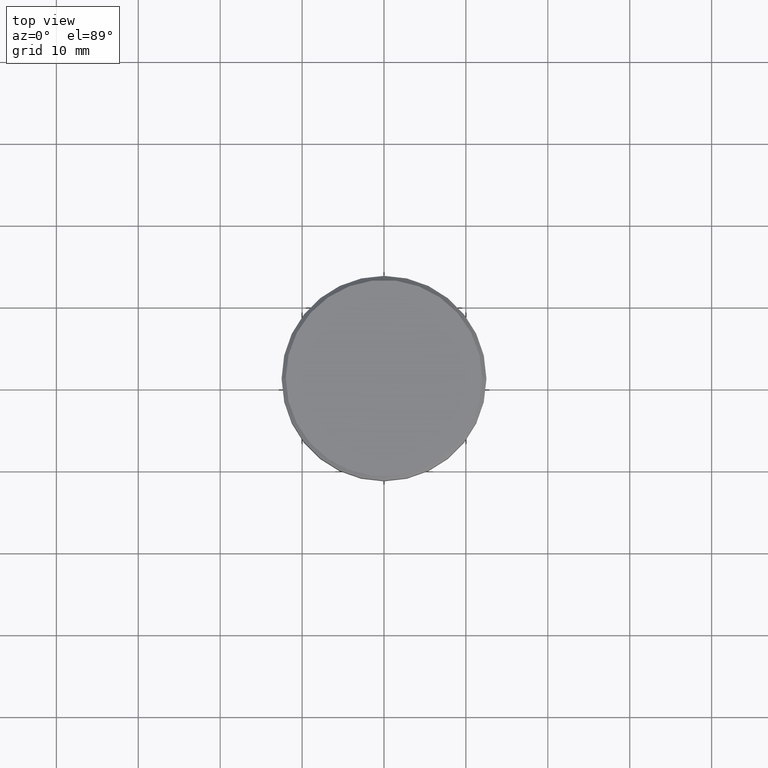
[diagram: clean part render]
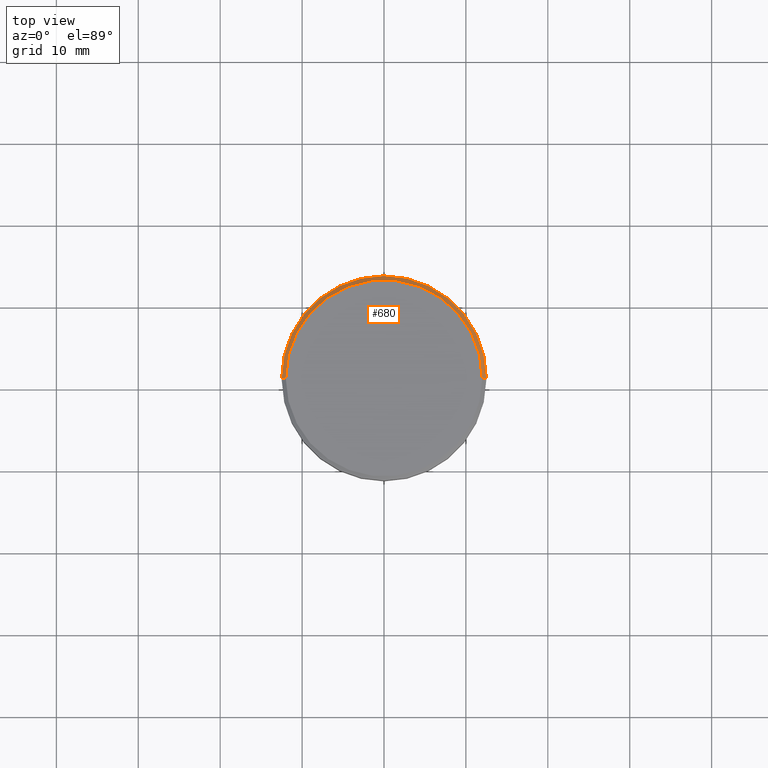
[diagram: same view with one face highlighted and labeled with its STEP entity id]
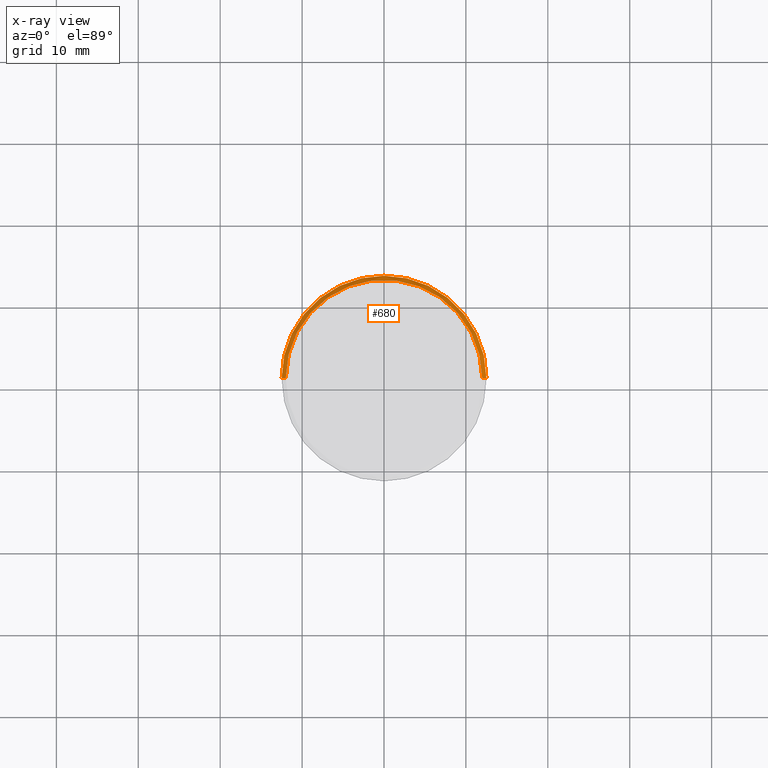
[diagram: x-ray of the same camera — body ghosted, the highlighted face saturated]
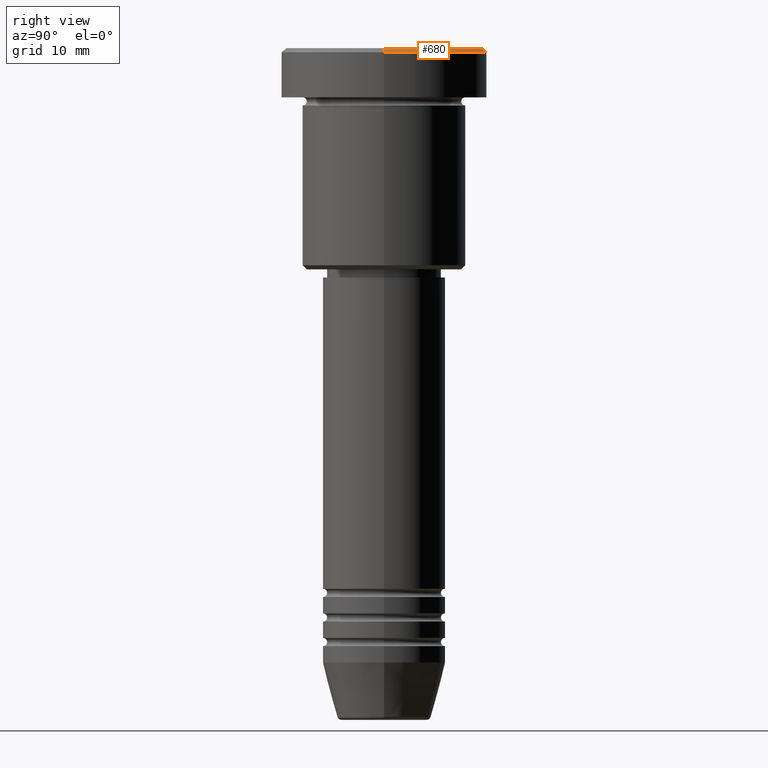
[diagram: same view with one face highlighted and labeled with its STEP entity id]
A machine part, top view. The second image highlights one B-rep face of the part: STEP entity #680.
The next image is the same camera in x-ray: the body ghosted, the highlighted face saturated — about 0% of this face is hidden behind the body in this view.
A second angle (right view) of the same face is appended — the face is thin or edge-on in the first view.
In plain terms, the highlighted conical surface has half-angle 45 deg.
Its self-contained STEP definition (entity closure, byte-faithful):
#2 = EDGE_CURVE ( 'NONE', #734, #525, #1149, .T. ) ;
#29 = AXIS2_PLACEMENT_3D ( 'NONE', #398, #146, #966 ) ;
#35 = ORIENTED_EDGE ( 'NONE', *, *, #592, .F. ) ;
#135 = VERTEX_POINT ( 'NONE', #640 ) ;
#140 = CARTESIAN_POINT ( 'NONE',  ( 12.00000000000001066, 1.469576158976825131E-15, 0.000000000000000000 ) ) ;
#146 = DIRECTION ( 'NONE',  ( 0.000000000000000000, 0.000000000000000000, -1.000000000000000000 ) ) ;
#153 = ORIENTED_EDGE ( 'NONE', *, *, #2, .T. ) ;
#155 = DIRECTION ( 'NONE',  ( -0.000000000000000000, -0.000000000000000000, 1.000000000000000000 ) ) ;
#178 = DIRECTION ( 'NONE',  ( 1.000000000000000000, 0.000000000000000000, 0.000000000000000000 ) ) ;
#260 = CIRCLE ( 'NONE', #309, 12.50000000000000000 ) ;
#267 = EDGE_LOOP ( 'NONE', ( #977, #153, #960, #35 ) ) ;
#277 = CIRCLE ( 'NONE', #433, 12.00000000000001066 ) ;
#278 = CARTESIAN_POINT ( 'NONE',  ( -12.00000000000001066, 0.000000000000000000, 0.000000000000000000 ) ) ;
#282 = CARTESIAN_POINT ( 'NONE',  ( 12.50000000000000000, 0.000000000000000000, -0.4999999999999917843 ) ) ;
#295 = EDGE_CURVE ( 'NONE', #734, #927, #277, .T. ) ;
#307 = VECTOR ( 'NONE', #881, 1000.000000000000000 ) ;
#309 = AXIS2_PLACEMENT_3D ( 'NONE', #696, #402, #780 ) ;
#383 = CARTESIAN_POINT ( 'NONE',  ( -12.00000000000001066, 0.000000000000000000, 0.000000000000000000 ) ) ;
#398 = CARTESIAN_POINT ( 'NONE',  ( 0.000000000000000000, 0.000000000000000000, 0.000000000000000000 ) ) ;
#402 = DIRECTION ( 'NONE',  ( 0.000000000000000000, 0.000000000000000000, -1.000000000000000000 ) ) ;
#433 = AXIS2_PLACEMENT_3D ( 'NONE', #1000, #155, #178 ) ;
#471 = EDGE_CURVE ( 'NONE', #135, #525, #260, .T. ) ;
#472 = CONICAL_SURFACE ( 'NONE', #29, 12.00000000000001066, 0.7853981633974466137 ) ;
#525 = VERTEX_POINT ( 'NONE', #282 ) ;
#592 = EDGE_CURVE ( 'NONE', #927, #135, #954, .T. ) ;
#640 = CARTESIAN_POINT ( 'NONE',  ( -12.50000000000000000, 1.530808498934191521E-15, -0.4999999999999917843 ) ) ;
#680 = ADVANCED_FACE ( 'NONE', ( #1060 ), #472, .T. ) ;
#696 = CARTESIAN_POINT ( 'NONE',  ( 0.000000000000000000, 0.000000000000000000, -0.4999999999999917843 ) ) ;
#734 = VERTEX_POINT ( 'NONE', #1119 ) ;
#780 = DIRECTION ( 'NONE',  ( 1.000000000000000000, 0.000000000000000000, 0.000000000000000000 ) ) ;
#881 = DIRECTION ( 'NONE',  ( 0.7071067811865463515, 8.659560562354919300E-17, -0.7071067811865487940 ) ) ;
#927 = VERTEX_POINT ( 'NONE', #278 ) ;
#954 = LINE ( 'NONE', #383, #1140 ) ;
#960 = ORIENTED_EDGE ( 'NONE', *, *, #471, .F. ) ;
#966 = DIRECTION ( 'NONE',  ( -1.000000000000000000, 0.000000000000000000, 0.000000000000000000 ) ) ;
#977 = ORIENTED_EDGE ( 'NONE', *, *, #295, .F. ) ;
#1000 = CARTESIAN_POINT ( 'NONE',  ( 0.000000000000000000, 0.000000000000000000, 0.000000000000000000 ) ) ;
#1060 = FACE_OUTER_BOUND ( 'NONE', #267, .T. ) ;
#1119 = CARTESIAN_POINT ( 'NONE',  ( 12.00000000000001066, 1.500192328955508326E-15, 0.000000000000000000 ) ) ;
#1126 = DIRECTION ( 'NONE',  ( -0.7071067811865463515, 0.000000000000000000, -0.7071067811865487940 ) ) ;
#1140 = VECTOR ( 'NONE', #1126, 1000.000000000000000 ) ;
#1149 = LINE ( 'NONE', #140, #307 ) ;